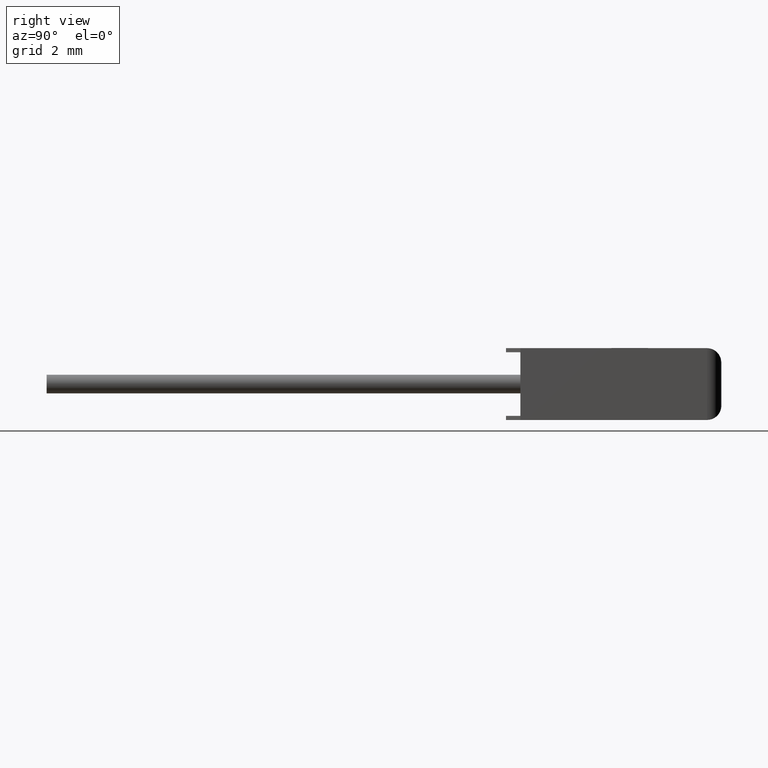
[diagram: clean part render]
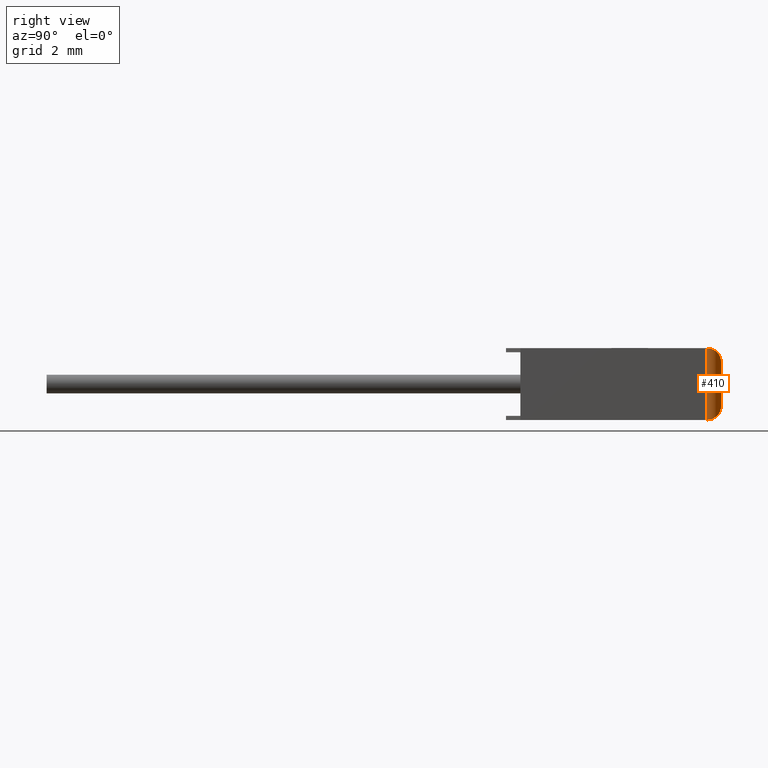
[diagram: same view with one face highlighted and labeled with its STEP entity id]
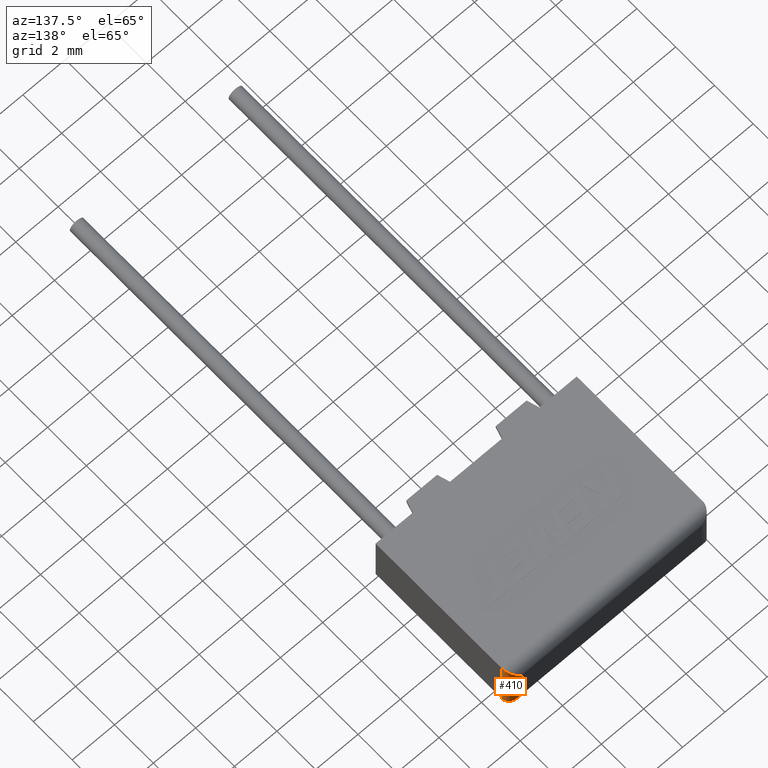
[diagram: same view with one face highlighted and labeled with its STEP entity id]
A machine part, right view. The second image highlights one B-rep face of the part: STEP entity #410.
A second angle (auxiliary view) of the same face is appended — the face is thin or edge-on in the first view.
In plain terms, the highlighted cylindrical surface (edge-blend (fillet) strip) has radius 0.5 mm, axis along (0, 0, -1).
Its self-contained STEP definition (entity closure, byte-faithful):
#67 = DIRECTION ( 'NONE',  ( -1.000000000000000000, 0.0000000000000000000, 0.0000000000000000000 ) ) ;
#69 = EDGE_CURVE ( 'NONE', #3046, #1083, #1584, .T. ) ;
#99 = AXIS2_PLACEMENT_3D ( 'NONE', #2349, #2843, #67 ) ;
#410 = ADVANCED_FACE ( 'NONE', ( #2651 ), #850, .T. ) ;
#421 = CARTESIAN_POINT ( 'NONE',  ( 9.500000000000000000, 6.792893218813452100, 2.500000000000000000 ) ) ;
#498 = DIRECTION ( 'NONE',  ( -0.0000000000000000000, -0.0000000000000000000, 1.000000000000000000 ) ) ;
#576 = LINE ( 'NONE', #2250, #2947 ) ;
#730 = EDGE_LOOP ( 'NONE', ( #1688, #2765, #2854, #3163 ) ) ;
#759 = CARTESIAN_POINT ( 'NONE',  ( 9.500000000000000000, 6.500000000000000900, 2.500000000000000000 ) ) ;
#850 = CYLINDRICAL_SURFACE ( 'NONE', #99, 0.5000000000000004400 ) ;
#860 = CARTESIAN_POINT ( 'NONE',  ( 9.500000000000000000, 6.500000000000000900, 0.0000000000000000000 ) ) ;
#1053 = CARTESIAN_POINT ( 'NONE',  ( 9.292893218813452100, 6.999999999999998200, 2.292893218813452500 ) ) ;
#1056 = VERTEX_POINT ( 'NONE', #2072 ) ;
#1061 = EDGE_CURVE ( 'NONE', #1098, #1056, #2970, .T. ) ;
#1083 = VERTEX_POINT ( 'NONE', #3142 ) ;
#1098 = VERTEX_POINT ( 'NONE', #1372 ) ;
#1251 = DIRECTION ( 'NONE',  ( 0.0000000000000000000, 0.0000000000000000000, -1.000000000000000000 ) ) ;
#1352 = CARTESIAN_POINT ( 'NONE',  ( 9.500000000000000000, 6.500000000000000900, 2.500000000000000000 ) ) ;
#1372 = CARTESIAN_POINT ( 'NONE',  ( 9.000000000000000000, 7.000000000000000000, 2.000000000000000000 ) ) ;
#1408 = EDGE_CURVE ( 'NONE', #1098, #1083, #576, .T. ) ;
#1584 =( BOUNDED_CURVE ( )  B_SPLINE_CURVE ( 3, ( #860, #1624, #3153, #2893 ),
 .UNSPECIFIED., .F., .F. ) 
 B_SPLINE_CURVE_WITH_KNOTS ( ( 4, 4 ),
 ( 0.0000000000000000000, 1.570796326794896600 ),
 .UNSPECIFIED. ) 
 CURVE ( )  GEOMETRIC_REPRESENTATION_ITEM ( )  RATIONAL_B_SPLINE_CURVE ( ( 1.000000000000000000, 0.8047378541243649400, 0.8047378541243649400, 1.000000000000000000 ) ) 
 REPRESENTATION_ITEM ( '' )  );
#1624 = CARTESIAN_POINT ( 'NONE',  ( 9.500000000000000000, 6.792893218813452100, 1.084202172485504400E-016 ) ) ;
#1688 = ORIENTED_EDGE ( 'NONE', *, *, #1061, .T. ) ;
#1943 = EDGE_CURVE ( 'NONE', #3046, #1056, #2016, .T. ) ;
#2016 = LINE ( 'NONE', #759, #2940 ) ;
#2072 = CARTESIAN_POINT ( 'NONE',  ( 9.500000000000000000, 6.500000000000000900, 2.500000000000000000 ) ) ;
#2250 = CARTESIAN_POINT ( 'NONE',  ( 9.000000000000000000, 7.000000000000000000, 2.500000000000000000 ) ) ;
#2349 = CARTESIAN_POINT ( 'NONE',  ( 9.000000000000000000, 6.500000000000000900, 2.500000000000000000 ) ) ;
#2583 = CARTESIAN_POINT ( 'NONE',  ( 9.000000000000000000, 7.000000000000000000, 2.000000000000000000 ) ) ;
#2651 = FACE_OUTER_BOUND ( 'NONE', #730, .T. ) ;
#2765 = ORIENTED_EDGE ( 'NONE', *, *, #1943, .F. ) ;
#2843 = DIRECTION ( 'NONE',  ( 0.0000000000000000000, 0.0000000000000000000, -1.000000000000000000 ) ) ;
#2854 = ORIENTED_EDGE ( 'NONE', *, *, #69, .T. ) ;
#2893 = CARTESIAN_POINT ( 'NONE',  ( 9.000000000000000000, 7.000000000000000000, 0.5000000000000000000 ) ) ;
#2940 = VECTOR ( 'NONE', #498, 1000.000000000000000 ) ;
#2947 = VECTOR ( 'NONE', #1251, 1000.000000000000000 ) ;
#2970 =( BOUNDED_CURVE ( )  B_SPLINE_CURVE ( 3, ( #2583, #1053, #421, #1352 ),
 .UNSPECIFIED., .F., .F. ) 
 B_SPLINE_CURVE_WITH_KNOTS ( ( 4, 4 ),
 ( 1.570796326794896600, 3.141592653589793100 ),
 .UNSPECIFIED. ) 
 CURVE ( )  GEOMETRIC_REPRESENTATION_ITEM ( )  RATIONAL_B_SPLINE_CURVE ( ( 1.000000000000000000, 0.8047378541243649400, 0.8047378541243649400, 1.000000000000000000 ) ) 
 REPRESENTATION_ITEM ( '' )  );
#3046 = VERTEX_POINT ( 'NONE', #3127 ) ;
#3127 = CARTESIAN_POINT ( 'NONE',  ( 9.500000000000000000, 6.500000000000000900, 0.0000000000000000000 ) ) ;
#3142 = CARTESIAN_POINT ( 'NONE',  ( 9.000000000000000000, 7.000000000000000000, 0.5000000000000000000 ) ) ;
#3153 = CARTESIAN_POINT ( 'NONE',  ( 9.292893218813452100, 6.999999999999998200, 0.2071067811865475700 ) ) ;
#3163 = ORIENTED_EDGE ( 'NONE', *, *, #1408, .F. ) ;